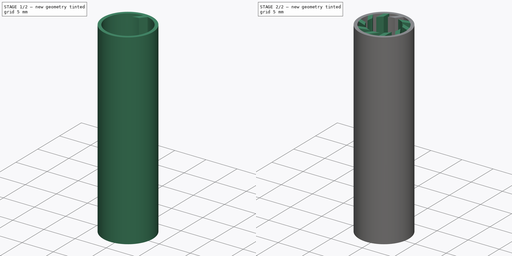
[diagram: build sequence overview — one tinted view per stage of 2, left to right]
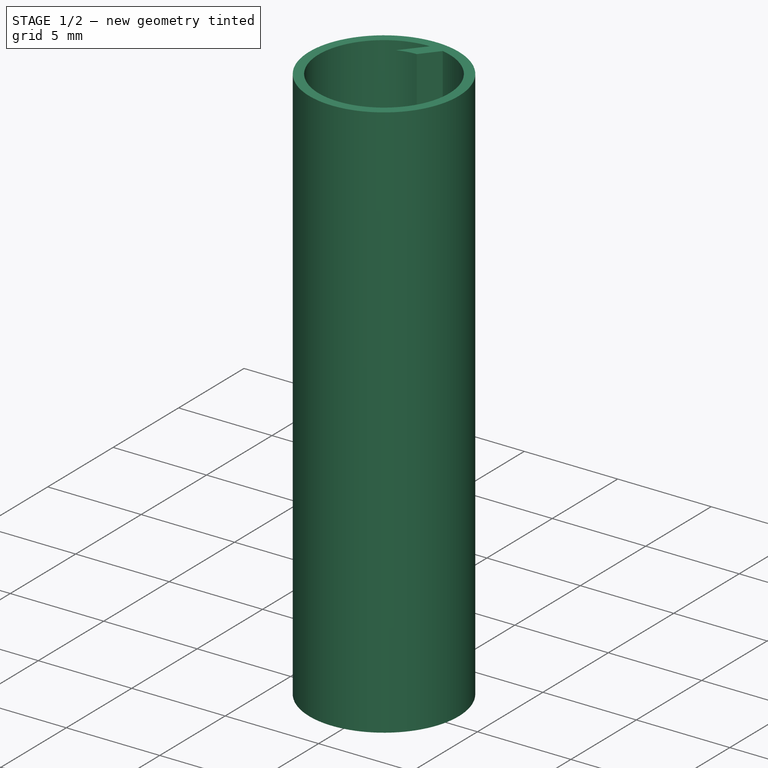
[diagram: stage 1 of 2 — iso view after this stage's code; geometry added in this stage tinted green]
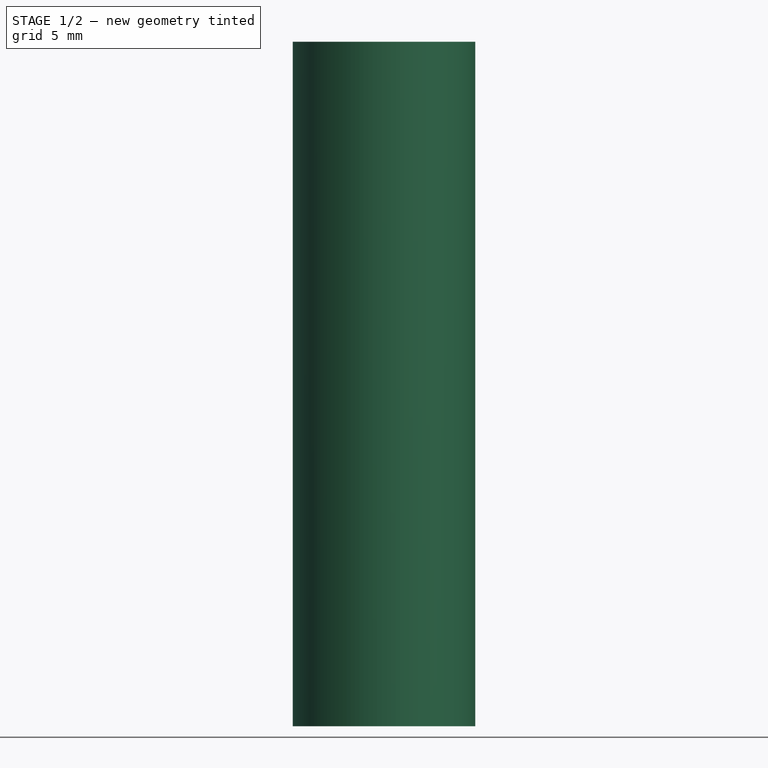
[diagram: stage 1 of 2 — front view after this stage's code; geometry added in this stage tinted green]
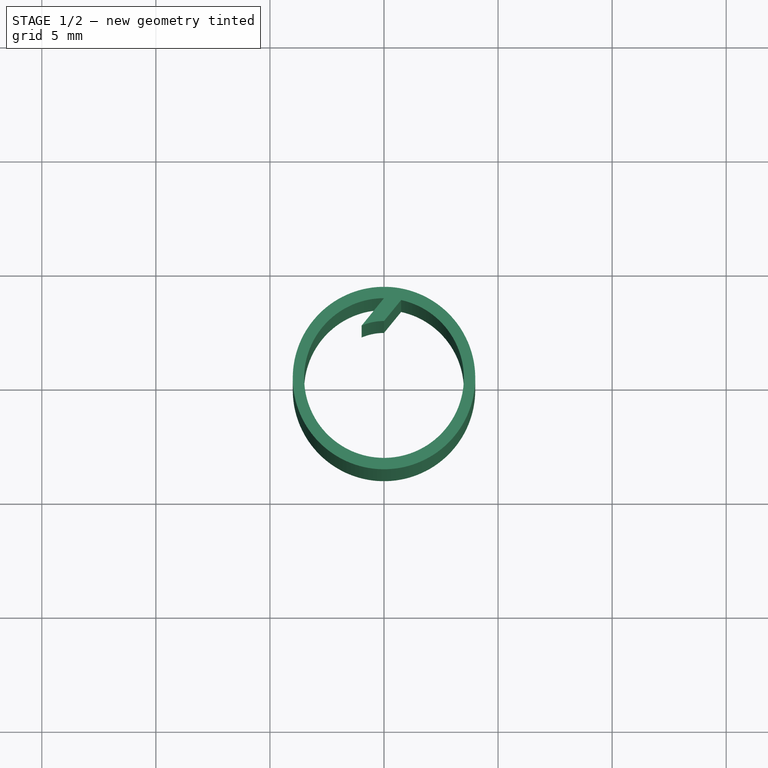
[diagram: stage 1 of 2 — top view after this stage's code; geometry added in this stage tinted green]
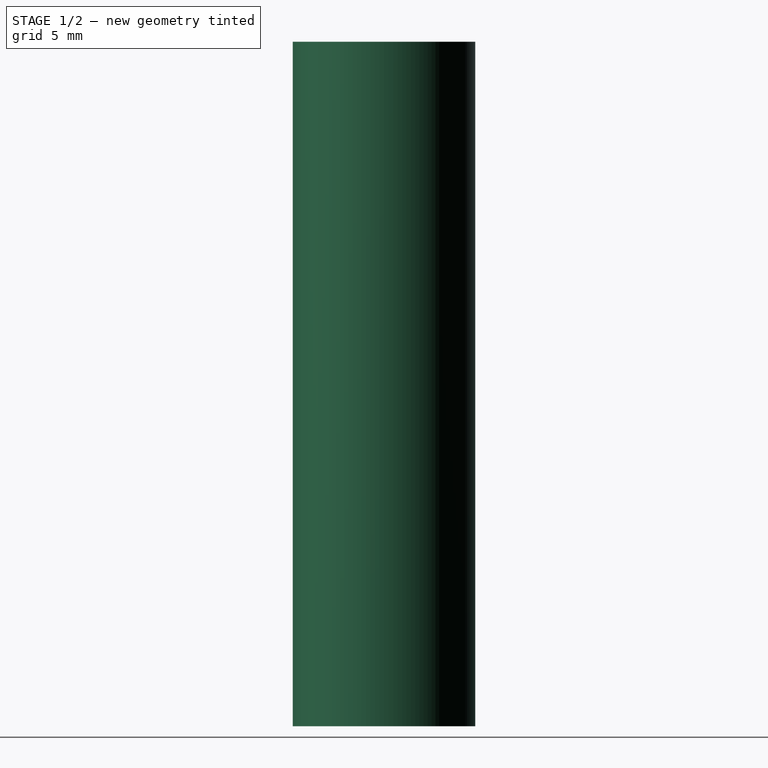
[diagram: stage 1 of 2 — right view after this stage's code; geometry added in this stage tinted green]
FCSTD DOCUMENT  (FreeCAD 0.22R38467 (Git))
Label: LM5UU Bush
objects: Sketcher::SketchObject×2, PartDesign::Pad×2, PartDesign::PolarPattern×1, PartDesign::Line×1, PartDesign::Body×1
note: 14 computed .brp shape members not serialized (recipe doc carries the construction recipe); baked Part::Feature solids carry a one-line shape summary decoded from their .brp

FEATURE [Sketcher::SketchObject] Sketch  label="finger profile"
  ArcFitTolerance = 1e-06
  AttachmentSupport = -> [XY_Plane001]
  FullyConstrained = true
  MakeInternals = false
  MapMode = 5
  sketch-geometry (7):
    g0: Circle [constr] CenterX=0 CenterY=0 CenterZ=0 NormalX=0 NormalY=0 NormalZ=1 AngleXU=0 Radius=5
    g1: Circle [constr] CenterX=0 CenterY=0 CenterZ=0 NormalX=0 NormalY=0 NormalZ=1 AngleXU=0 Radius=2.5
    g2: Circle [constr] CenterX=0 CenterY=0 CenterZ=0 NormalX=0 NormalY=0 NormalZ=1 AngleXU=0 Radius=3.5
    g3: LineSegment StartX=2e-16 StartY=3.5 StartZ=0 EndX=-0.979796 EndY=2.3 EndZ=0
    g4: LineSegment StartX=2e-16 StartY=2.5 StartZ=0 EndX=0.750097 EndY=3.41868 EndZ=0
    g5: ArcOfCircle CenterX=0 CenterY=0 CenterZ=0 NormalX=0 NormalY=0 NormalZ=1 AngleXU=0 Radius=2.5 StartAngle=1.5708 EndAngle=1.97351
    g6: ArcOfCircle CenterX=0 CenterY=0 CenterZ=0 NormalX=0 NormalY=0 NormalZ=1 AngleXU=0 Radius=3.5 StartAngle=1.35481 EndAngle=1.5708
  constraints (18):
    c: Diameter(g0) = 10
    c: Coincident(g0,g-1)
    c: Diameter(g1) = 5
    c: Coincident(g1,g0)
    c: Diameter(g2) = 7
    c: Coincident(g2,g0)
    c: PointOnObject(g3,g2)
    c: PointOnObject(g4,g1)
    c: PointOnObject(g3,g-2)
    c: PointOnObject(g4,g-2)
    c: Parallel(g3,g4)
    c: Coincident(g5,g0)
    c: Coincident(g5,g3)
    c: Coincident(g5,g4)
    c: Coincident(g6,g0)
    c: Coincident(g6,g3)
    c: Coincident(g6,g4)
    c: Distance(g3,g4) = 1
FEATURE [Sketcher::SketchObject] Sketch001  label="ring profile"
  ArcFitTolerance = 1e-06
  AttachmentSupport = -> [XY_Plane001]
  FullyConstrained = true
  MakeInternals = false
  MapMode = 5
  sketch-geometry (2):
    g0: Circle CenterX=0 CenterY=0 CenterZ=0 NormalX=0 NormalY=0 NormalZ=1 AngleXU=0 Radius=3.5
    g1: Circle CenterX=0 CenterY=0 CenterZ=0 NormalX=0 NormalY=0 NormalZ=1 AngleXU=0 Radius=4
  constraints (4):
    c: Diameter(g0) = 7
    c: Coincident(g0,g-1)
    c: Diameter(g1) = 8
    c: Coincident(g1,g0)
FEATURE [PartDesign::Pad] Pad
  Direction = (0,0,1)
  Length = 30
  Length2 = 10
  Midplane = true
  Profile = -> Sketch001
  ReferenceAxis = -> Sketch001 [N_Axis]
  Refine = true
  Suppressed = false
  Type = 0
FEATURE [PartDesign::Pad] Pad001
  BaseFeature = -> Pad
  Direction = (0,0,1)
  Length = 30
  Length2 = 10
  Midplane = true
  Profile = -> Sketch
  ReferenceAxis = -> Sketch [N_Axis]
  Refine = true
  Suppressed = false
  Type = 0
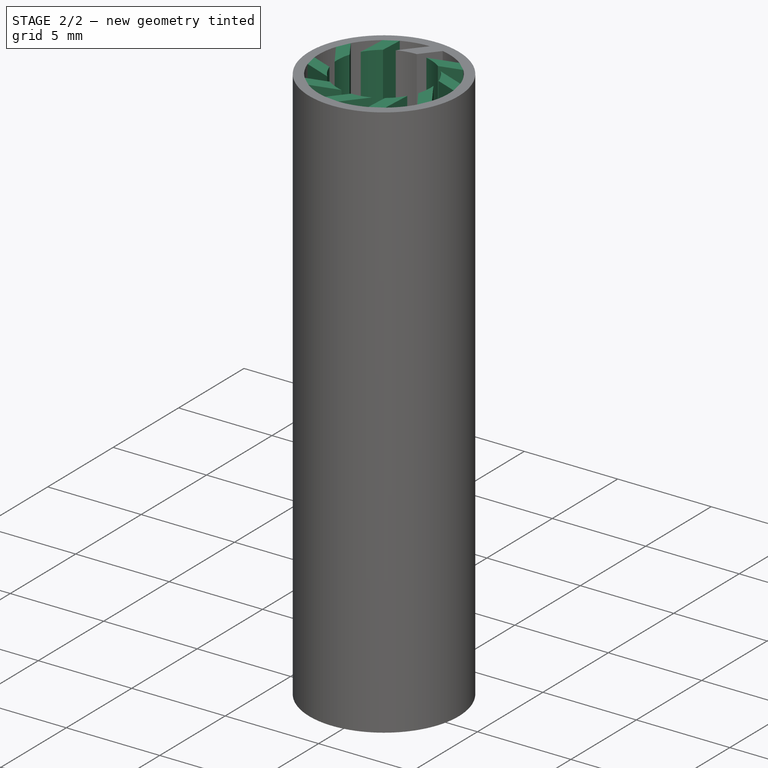
[diagram: stage 2 of 2 — iso view after this stage's code; geometry added in this stage tinted green]
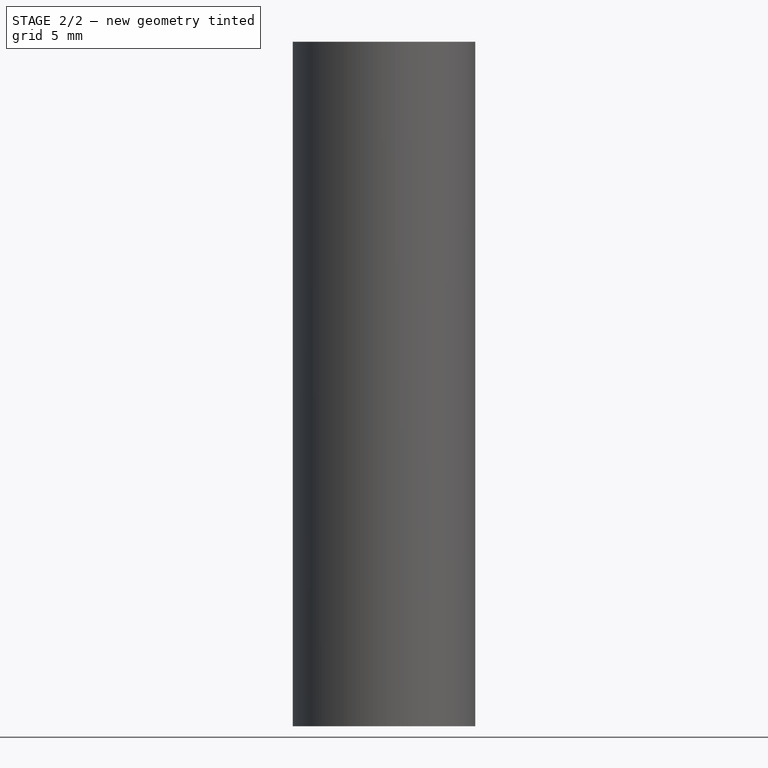
[diagram: stage 2 of 2 — front view after this stage's code; geometry added in this stage tinted green]
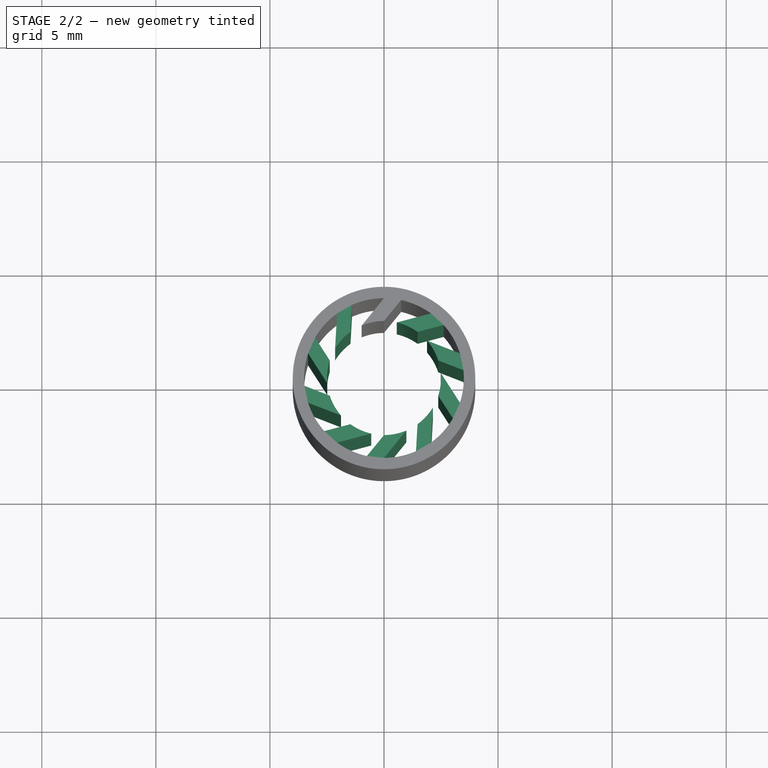
[diagram: stage 2 of 2 — top view after this stage's code; geometry added in this stage tinted green]
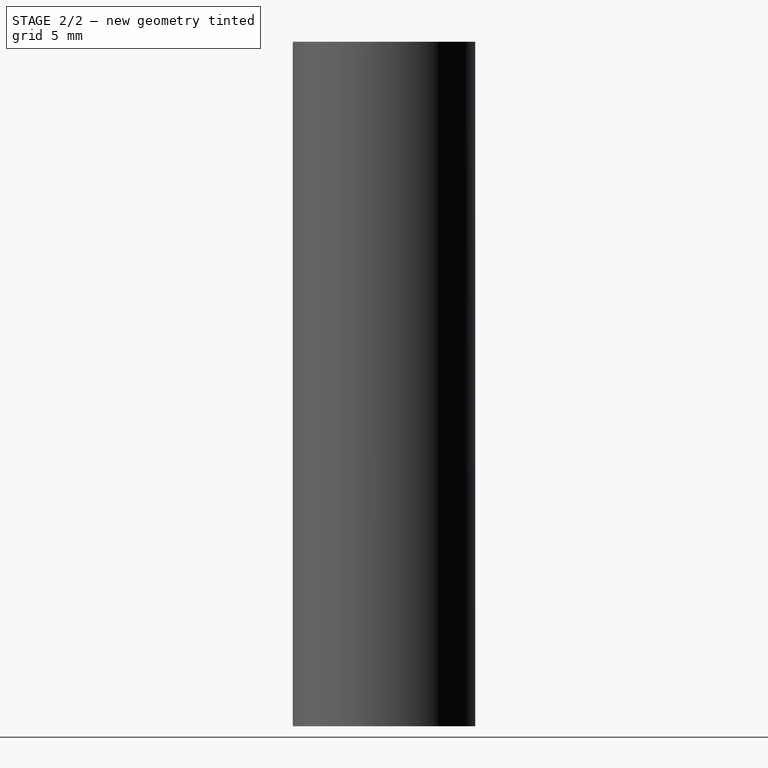
[diagram: stage 2 of 2 — right view after this stage's code; geometry added in this stage tinted green]
FEATURE [PartDesign::PolarPattern] PolarPattern
  Angle = 360
  Axis = -> Z_Axis001
  BaseFeature = -> Pad001
  Mode = 0
  Occurrences = 10
  Offset = 120
  Refine = true
  Suppressed = false
  TransformMode = 1
FEATURE [PartDesign::Line] HoleAxis_1  label="Shaft AP"
  AttacherType = Attacher::AttachEngineLine
  AttachmentSupport = -> [PolarPattern]
  Length = 1
  MapMode = 19
  Placement = pos=(4e-15,2.2e-15,15) rot=(0,0,1;4.08407rad)
  ResizeMode = 1
FEATURE [PartDesign::Body] Body  label="LM5UU"
  AllowCompound = false
  Group = -> [Sketch,Sketch001,Pad,Pad001,PolarPattern,HoleAxis_1]
  Origin = -> Origin001
  Tip = -> PolarPattern
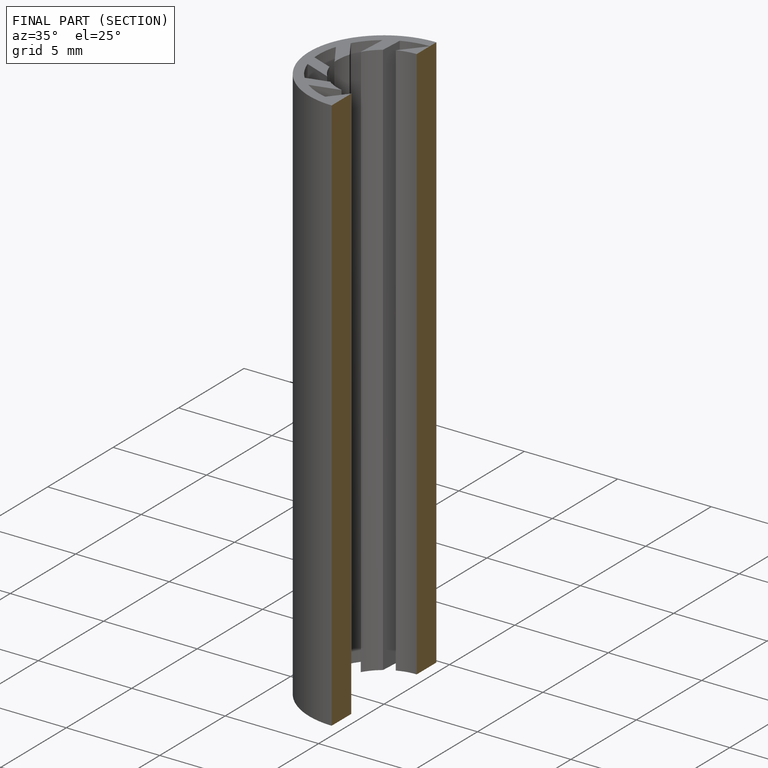
[diagram: finished part — half-section view (interior)]
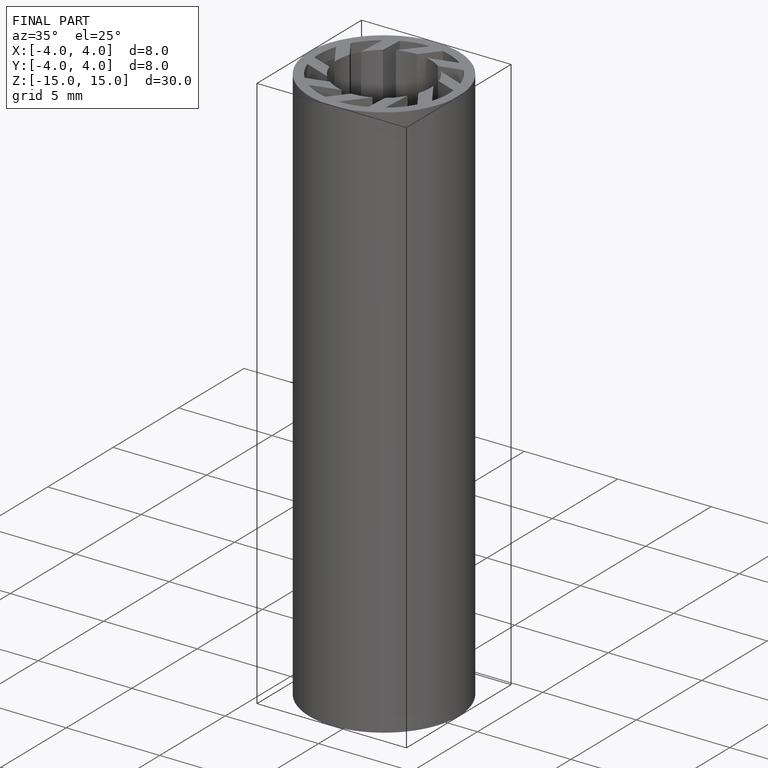
[diagram: finished part — iso view with bounding-box wireframe]
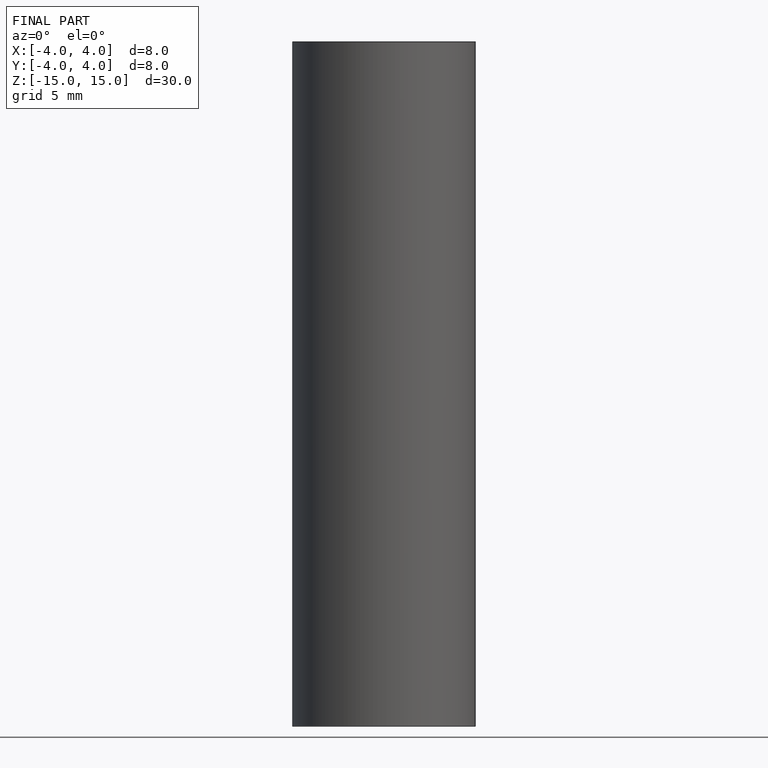
[diagram: finished part — front view with bounding-box wireframe]
